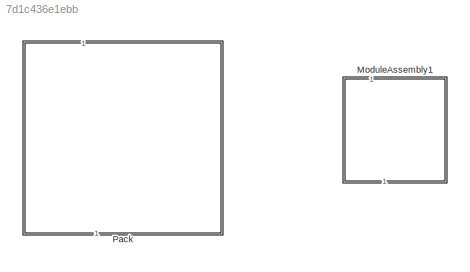
MODEL slx_7d1c436e1ebb
KIND library
CONFIG SolverName = VariableStepAuto
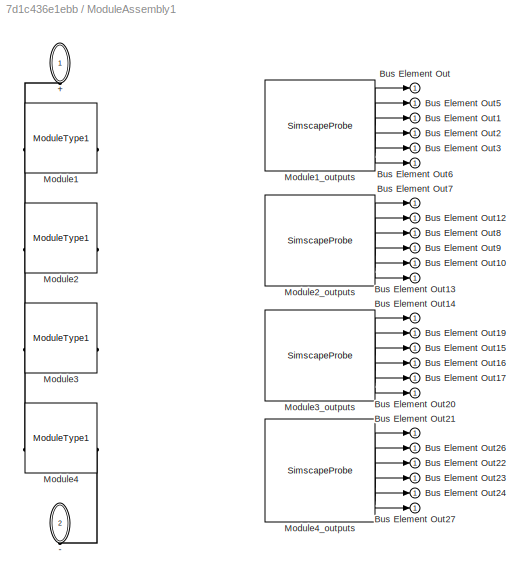
BLOCK [SubSystem] ModuleAssembly1
  LoadFcn = battery_builder_rtmsupport('loadfcn',gcbh);
  PortSchema = {"entries":[{"content":{"sides":[{"content":{"connectorIds":["LConn1"]},"type":"ConnectorPlacement.EquallySpacedRectSide","uuid":"bc91a472-35c0-4041-89a6-b649b08794f0"},{"content":{"connectorIds":["RConn1"],"side":"RIGHT"},"type":"ConnectorPlacement.EquallySpacedRectSide","uuid":"4a390b53-12a2-4d2f-9537-abc76db307f8"},{"content":{"connectorIds":[],"side":"TOP"},"type":"ConnectorPlacement.EquallySp...<+395ch>
  PreCopyFcn = battery_builder_rtmsupport('precopyfcn',gcbh);
  PreDeleteFcn = battery_builder_rtmsupport('predeletefcn',gcbh);
BLOCK [PMIOPort] ModuleAssembly1/+
  NameLocation = left
  Side = Left
BLOCK [PMIOPort] ModuleAssembly1/-
  NameLocation = left
  Port = 2
  Side = Right
BLOCK [Outport] ModuleAssembly1/Bus Element Out
BLOCK [Outport] ModuleAssembly1/Bus Element Out1
BLOCK [Outport] ModuleAssembly1/Bus Element Out10
BLOCK [Outport] ModuleAssembly1/Bus Element Out12
BLOCK [Outport] ModuleAssembly1/Bus Element Out13
BLOCK [Outport] ModuleAssembly1/Bus Element Out14
BLOCK [Outport] ModuleAssembly1/Bus Element Out15
BLOCK [Outport] ModuleAssembly1/Bus Element Out16
BLOCK [Outport] ModuleAssembly1/Bus Element Out17
BLOCK [Outport] ModuleAssembly1/Bus Element Out19
BLOCK [Outport] ModuleAssembly1/Bus Element Out2
BLOCK [Outport] ModuleAssembly1/Bus Element Out20
BLOCK [Outport] ModuleAssembly1/Bus Element Out21
BLOCK [Outport] ModuleAssembly1/Bus Element Out22
BLOCK [Outport] ModuleAssembly1/Bus Element Out23
BLOCK [Outport] ModuleAssembly1/Bus Element Out24
BLOCK [Outport] ModuleAssembly1/Bus Element Out26
BLOCK [Outport] ModuleAssembly1/Bus Element Out27
BLOCK [Outport] ModuleAssembly1/Bus Element Out3
BLOCK [Outport] ModuleAssembly1/Bus Element Out5
BLOCK [Outport] ModuleAssembly1/Bus Element Out6
BLOCK [Outport] ModuleAssembly1/Bus Element Out7
BLOCK [Outport] ModuleAssembly1/Bus Element Out8
BLOCK [Outport] ModuleAssembly1/Bus Element Out9
BLOCK [Reference] ModuleAssembly1/Module1  REF=pack_5p48s8p_1g10g1_Iso_lib/Modules/ModuleType1
  NameLocation = right
  SourceBlock = pack_5p48s8p_1g10g1_Iso_lib/Modules/ModuleType1
  SourceType = ModuleType1
BLOCK [SimscapeProbe] ModuleAssembly1/Module1_outputs
  BoundBlock = 1177
  Variables = {"batteryCurrent":{"Probing":"ON"},"batteryVoltage":{"Probing":"ON"},"iCell":{"Probing":"OFF"},"numCycles":{"Probing":"ON"},"numCyclesCell":{"Probing":"OFF"},"socCell":{"Probing":"ON"},"socParallelAssembly":{"Probing":"ON"},"vCell":{"Probing":"OFF"},"vParallelAssembly":{"Probing":"ON"}}  <repeated x4 — deduplicated; at blocks: Module1_outputs, Module2_outputs, Module3_outputs, Module4_outputs>
BLOCK [Reference] ModuleAssembly1/Module2  REF=pack_5p48s8p_1g10g1_Iso_lib/Modules/ModuleType1
  NameLocation = right
  SourceBlock = pack_5p48s8p_1g10g1_Iso_lib/Modules/ModuleType1
  SourceType = ModuleType1
BLOCK [SimscapeProbe] ModuleAssembly1/Module2_outputs
  BoundBlock = 1178
BLOCK [Reference] ModuleAssembly1/Module3  REF=pack_5p48s8p_1g10g1_Iso_lib/Modules/ModuleType1
  NameLocation = right
  SourceBlock = pack_5p48s8p_1g10g1_Iso_lib/Modules/ModuleType1
  SourceType = ModuleType1
BLOCK [SimscapeProbe] ModuleAssembly1/Module3_outputs
  BoundBlock = 1179
BLOCK [Reference] ModuleAssembly1/Module4  REF=pack_5p48s8p_1g10g1_Iso_lib/Modules/ModuleType1
  NameLocation = right
  SourceBlock = pack_5p48s8p_1g10g1_Iso_lib/Modules/ModuleType1
  SourceType = ModuleType1
BLOCK [SimscapeProbe] ModuleAssembly1/Module4_outputs
  BoundBlock = 1180
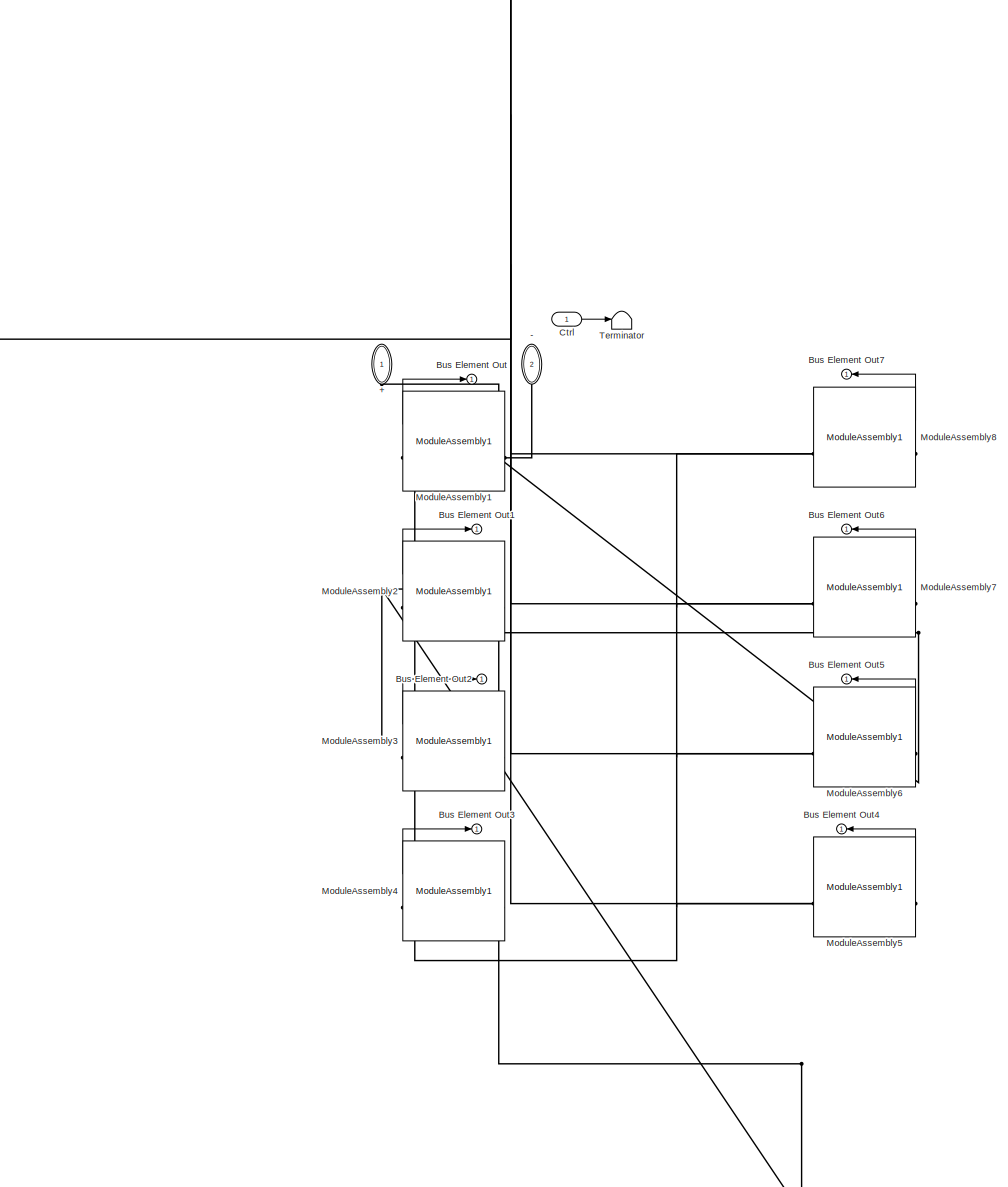
[diagram: Pack - part 1/1, most of the canvas]
BLOCK [SubSystem] Pack
  LoadFcn = battery_builder_rtmsupport('loadfcn',gcbh);
  NameLocation = right
  PreCopyFcn = battery_builder_rtmsupport('precopyfcn',gcbh);
  PreDeleteFcn = battery_builder_rtmsupport('predeletefcn',gcbh);
BLOCK [PMIOPort] Pack/+
  NameLocation = right
  Side = Left
BLOCK [PMIOPort] Pack/-
  NameLocation = right
  Port = 2
  Side = Right
BLOCK [Outport] Pack/Bus Element Out
BLOCK [Outport] Pack/Bus Element Out1
BLOCK [Outport] Pack/Bus Element Out2
BLOCK [Outport] Pack/Bus Element Out3
  NameLocation = left
BLOCK [Outport] Pack/Bus Element Out4
BLOCK [Outport] Pack/Bus Element Out5
BLOCK [Outport] Pack/Bus Element Out6
BLOCK [Outport] Pack/Bus Element Out7
BLOCK [Inport] Pack/Ctrl
BLOCK [Reference] Pack/ModuleAssembly1  REF=$bdroot/ModuleAssembly1
  SourceBlock = $bdroot/ModuleAssembly1
BLOCK [Reference] Pack/ModuleAssembly2  REF=$bdroot/ModuleAssembly1
  SourceBlock = $bdroot/ModuleAssembly1
BLOCK [Reference] Pack/ModuleAssembly3  REF=$bdroot/ModuleAssembly1
  SourceBlock = $bdroot/ModuleAssembly1
BLOCK [Reference] Pack/ModuleAssembly4  REF=$bdroot/ModuleAssembly1
  SourceBlock = $bdroot/ModuleAssembly1
BLOCK [Reference] Pack/ModuleAssembly5  REF=$bdroot/ModuleAssembly1
  SourceBlock = $bdroot/ModuleAssembly1
BLOCK [Reference] Pack/ModuleAssembly6  REF=$bdroot/ModuleAssembly1
  SourceBlock = $bdroot/ModuleAssembly1
BLOCK [Reference] Pack/ModuleAssembly7  REF=$bdroot/ModuleAssembly1
  SourceBlock = $bdroot/ModuleAssembly1
BLOCK [Reference] Pack/ModuleAssembly8  REF=$bdroot/ModuleAssembly1
  SourceBlock = $bdroot/ModuleAssembly1
BLOCK [Terminator] Pack/Terminator
LINE ModuleAssembly1/Module1_outputs:1 -> ModuleAssembly1/Bus Element Out:1
LINE ModuleAssembly1/Module1_outputs:2 -> ModuleAssembly1/Bus Element Out5:1
LINE ModuleAssembly1/Module1_outputs:3 -> ModuleAssembly1/Bus Element Out1:1
LINE ModuleAssembly1/Module1_outputs:4 -> ModuleAssembly1/Bus Element Out2:1
LINE ModuleAssembly1/Module1_outputs:5 -> ModuleAssembly1/Bus Element Out3:1
LINE ModuleAssembly1/Module1_outputs:6 -> ModuleAssembly1/Bus Element Out6:1
LINE ModuleAssembly1/Module2_outputs:1 -> ModuleAssembly1/Bus Element Out7:1
LINE ModuleAssembly1/Module2_outputs:2 -> ModuleAssembly1/Bus Element Out12:1
LINE ModuleAssembly1/Module2_outputs:3 -> ModuleAssembly1/Bus Element Out8:1
LINE ModuleAssembly1/Module2_outputs:4 -> ModuleAssembly1/Bus Element Out9:1
LINE ModuleAssembly1/Module2_outputs:5 -> ModuleAssembly1/Bus Element Out10:1
LINE ModuleAssembly1/Module2_outputs:6 -> ModuleAssembly1/Bus Element Out13:1
LINE ModuleAssembly1/Module3_outputs:1 -> ModuleAssembly1/Bus Element Out14:1
LINE ModuleAssembly1/Module3_outputs:2 -> ModuleAssembly1/Bus Element Out19:1
LINE ModuleAssembly1/Module3_outputs:3 -> ModuleAssembly1/Bus Element Out15:1
LINE ModuleAssembly1/Module3_outputs:4 -> ModuleAssembly1/Bus Element Out16:1
LINE ModuleAssembly1/Module3_outputs:5 -> ModuleAssembly1/Bus Element Out17:1
LINE ModuleAssembly1/Module3_outputs:6 -> ModuleAssembly1/Bus Element Out20:1
LINE ModuleAssembly1/Module4_outputs:1 -> ModuleAssembly1/Bus Element Out21:1
LINE ModuleAssembly1/Module4_outputs:2 -> ModuleAssembly1/Bus Element Out26:1
LINE ModuleAssembly1/Module4_outputs:3 -> ModuleAssembly1/Bus Element Out22:1
LINE ModuleAssembly1/Module4_outputs:4 -> ModuleAssembly1/Bus Element Out23:1
LINE ModuleAssembly1/Module4_outputs:5 -> ModuleAssembly1/Bus Element Out24:1
LINE ModuleAssembly1/Module4_outputs:6 -> ModuleAssembly1/Bus Element Out27:1
LINE Pack/Ctrl:1 -> Pack/Terminator:1
LINE Pack/ModuleAssembly1:1 -> Pack/Bus Element Out:1
LINE Pack/ModuleAssembly2:1 -> Pack/Bus Element Out1:1
LINE Pack/ModuleAssembly3:1 -> Pack/Bus Element Out2:1
LINE Pack/ModuleAssembly4:1 -> Pack/Bus Element Out3:1
LINE Pack/ModuleAssembly5:1 -> Pack/Bus Element Out4:1
LINE Pack/ModuleAssembly6:1 -> Pack/Bus Element Out5:1
LINE Pack/ModuleAssembly7:1 -> Pack/Bus Element Out6:1
LINE Pack/ModuleAssembly8:1 -> Pack/Bus Element Out7:1
PLINE ModuleAssembly1/+:RConn1 -- ModuleAssembly1/Module1:LConn1
PLINE ModuleAssembly1/-:RConn1 -- ModuleAssembly1/Module4:RConn1
PLINE ModuleAssembly1/Module1:RConn1 -- ModuleAssembly1/Module2:LConn1
PLINE ModuleAssembly1/Module2:RConn1 -- ModuleAssembly1/Module3:LConn1
PLINE ModuleAssembly1/Module3:RConn1 -- ModuleAssembly1/Module4:LConn1
PNET net1: Pack/+:RConn1 -- Pack/ModuleAssembly1:LConn1 -- Pack/ModuleAssembly2:LConn1 -- Pack/ModuleAssembly3:LConn1 -- Pack/ModuleAssembly4:LConn1 -- Pack/ModuleAssembly5:LConn1 -- Pack/ModuleAssembly6:LConn1 -- Pack/ModuleAssembly7:LConn1 -- Pack/ModuleAssembly8:LConn1
PNET net2: Pack/-:RConn1 -- Pack/ModuleAssembly1:RConn1 -- Pack/ModuleAssembly2:RConn1 -- Pack/ModuleAssembly3:RConn1 -- Pack/ModuleAssembly4:RConn1 -- Pack/ModuleAssembly5:RConn1 -- Pack/ModuleAssembly6:RConn1 -- Pack/ModuleAssembly7:RConn1 -- Pack/ModuleAssembly8:RConn1
note: PNET lines group multi-terminal physical nets as a canonical sorted terminal list (undirected conserving connections); 2-terminal nets keep the pairwise PLINE form
